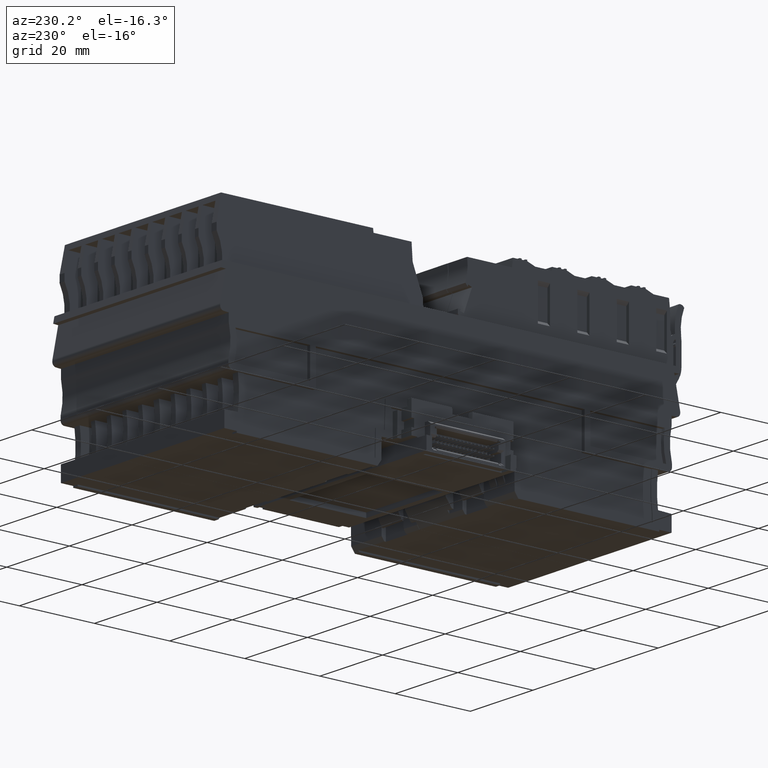
[diagram: clean part render]
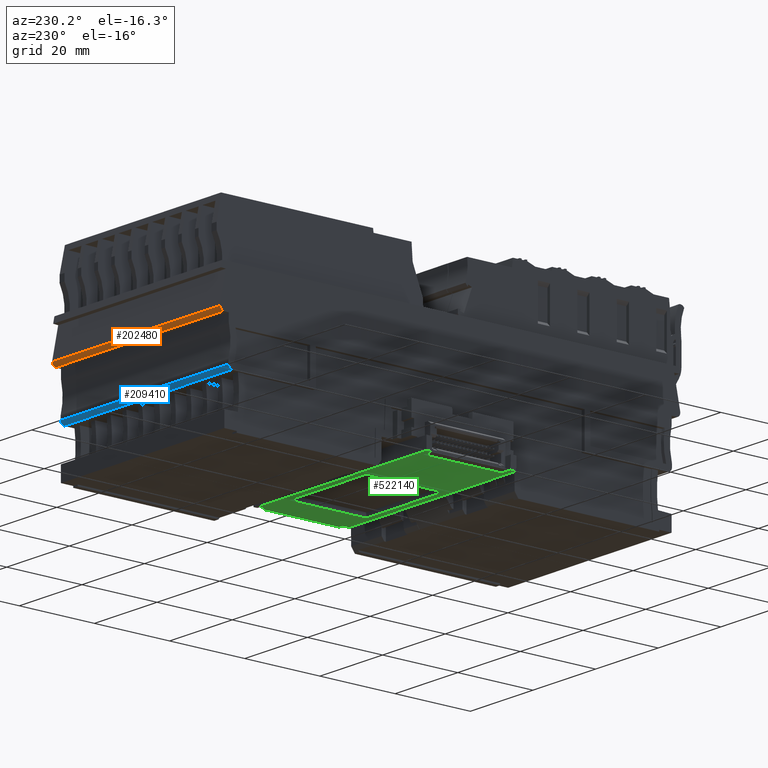
[diagram: same view with three faces highlighted in distinct colors, each labeled with its STEP entity id]
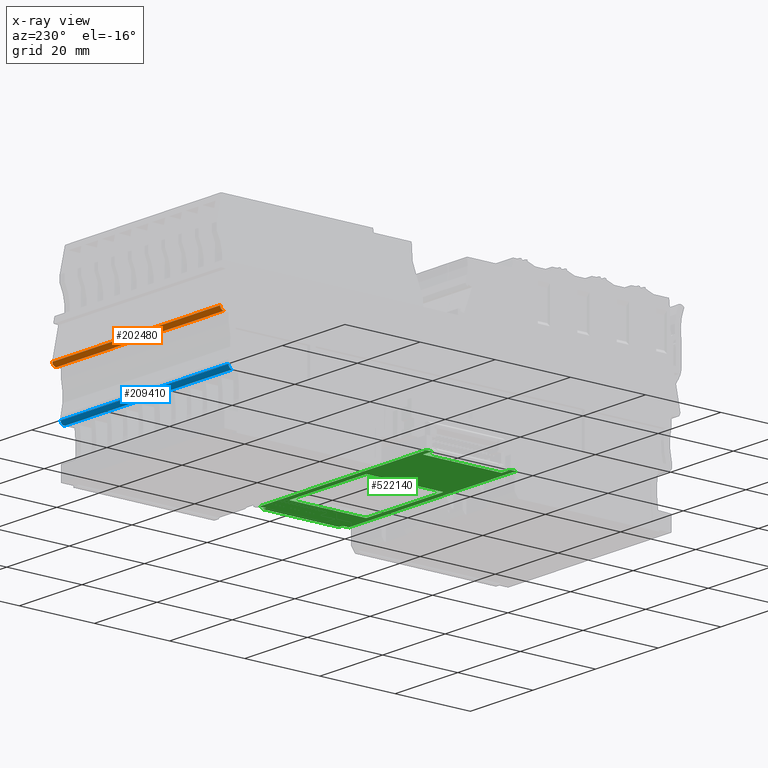
[diagram: x-ray of the same camera — body ghosted, the three highlighted faces saturated]
A machine part, auxiliary view with three faces highlighted in distinct colors.
The next image is the same camera in x-ray (body ghosted, the three faces saturated) — at least one of them is partly hidden behind the body in this view.
Their STEP definitions:

[orange] entity #202480 — the highlighted cylindrical surface (edge-blend (fillet) strip) has radius 1 mm, axis along (-1, 0, 0).
#191060=CARTESIAN_POINT('',(93.2627630572111,40.8492414770508,
5.56760342089841));
#191070=VERTEX_POINT('',#191060);
#191100=CARTESIAN_POINT('',(92.2702169055698,40.7292236028127,
5.58876581030419));
#191110=DIRECTION('',(0.00212691332374861,0.156562576307246,
0.987665751122186));
#191120=DIRECTION('',(-0.999997737947596,0.000351191570620833,
0.00209779984081798));
#191130=AXIS2_PLACEMENT_3D('',#191100,#191110,#191120);
#191140=CIRCLE('',#191130,1.);
#191150=CARTESIAN_POINT('',(92.4438465473828,39.7564995361036,
5.7425859569974));
#191160=VERTEX_POINT('',#191150);
#191170=EDGE_CURVE('',#191160,#191070,#191140,.T.);
#196210=CARTESIAN_POINT('',(93.148760502722,32.4574873869691,
-47.371280839258));
#196220=VERTEX_POINT('',#196210);
#196250=CARTESIAN_POINT('',(93.2548934778889,40.2699599446303,
1.91324014122375));
#196260=DIRECTION('',(0.00212691333002156,0.156562576307465,
0.987665751122138));
#196270=VECTOR('',#196260,1.);
#196280=LINE('',#196250,#196270);
#196290=EDGE_CURVE('',#196220,#191070,#196280,.T.);
#196570=CARTESIAN_POINT('',(92.3298439928936,31.3647454460219,
-47.1962983031589));
#196580=VERTEX_POINT('',#196570);
#196700=CARTESIAN_POINT('',(92.4359769680606,39.1772180036839,
2.08822267732805));
#196710=DIRECTION('',(0.00212691333002156,0.156562576307465,
0.987665751122138));
#196720=VECTOR('',#196710,1.);
#196730=LINE('',#196700,#196720);
#196740=EDGE_CURVE('',#196580,#191160,#196730,.T.);
#199010=CARTESIAN_POINT('',(92.1562143510806,32.337469512731,
-47.3501184498521));
#199020=DIRECTION('',(0.00212691332386244,0.156562576307274,
0.987665751122181));
#199030=DIRECTION('',(-0.999997737947596,0.000351191570638654,
0.00209779984093041));
#199040=AXIS2_PLACEMENT_3D('',#199010,#199020,#199030);
#199050=CIRCLE('',#199040,1.);
#199060=EDGE_CURVE('',#196580,#196220,#199050,.T.);
#202370=CARTESIAN_POINT('',(92.2623473262476,40.1499420703932,
1.9344025306357));
#202380=DIRECTION('',(-0.00212691333002156,-0.156562576307465,
-0.987665751122138));
#202390=DIRECTION('',(-0.999997737947583,0.000351191571602943,
0.00209779984701357));
#202400=AXIS2_PLACEMENT_3D('',#202370,#202380,#202390);
#202410=CYLINDRICAL_SURFACE('',#202400,1.);
#202420=ORIENTED_EDGE('',*,*,#191170,.F.);
#202430=ORIENTED_EDGE('',*,*,#196290,.T.);
#202440=ORIENTED_EDGE('',*,*,#199060,.T.);
#202450=ORIENTED_EDGE('',*,*,#196740,.F.);
#202460=EDGE_LOOP('',(#202450,#202440,#202430,#202420));
#202470=FACE_OUTER_BOUND('',#202460,.T.);
#202480=ADVANCED_FACE('',(#202470),#202410,.T.);

[blue] entity #209410 — the highlighted cylindrical surface (edge-blend (fillet) strip) has radius 1 mm, axis along (1, -0, -0).
#191560=CARTESIAN_POINT('',(92.5473341594871,28.7730386882404,
7.48343686326467));
#191570=VERTEX_POINT('',#191560);
#191600=CARTESIAN_POINT('',(91.5547880078458,28.6530208140019,
7.50459925267052));
#191610=DIRECTION('',(0.00212691332374861,0.156562576307246,
0.987665751122186));
#191620=DIRECTION('',(-0.999997737947596,0.000351191570620833,
0.00209779984081798));
#191630=AXIS2_PLACEMENT_3D('',#191600,#191610,#191620);
#191640=CIRCLE('',#191630,1.);
#191650=CARTESIAN_POINT('',(91.6766387899598,27.6726719630536,
7.6597395676877));
#191660=VERTEX_POINT('',#191650);
#191670=EDGE_CURVE('',#191660,#191570,#191640,.T.);
#198630=CARTESIAN_POINT('',(91.5626362354728,19.2809178728142,
-45.2791446932604));
#198640=VERTEX_POINT('',#198630);
#198670=CARTESIAN_POINT('',(91.4407854533605,20.2612667238892,
-45.4342850074805));
#198680=DIRECTION('',(0.00212691332386244,0.156562576307274,
0.987665751122181));
#198690=DIRECTION('',(-0.999997737947596,0.000351191570638654,
0.00209779984093041));
#198700=AXIS2_PLACEMENT_3D('',#198670,#198680,#198690);
#198710=CIRCLE('',#198700,1.);
#198720=CARTESIAN_POINT('',(92.4333316050001,20.3812845980049,
-45.4554473976616));
#198730=VERTEX_POINT('',#198720);
#198740=EDGE_CURVE('',#198640,#198730,#198710,.T.);
#208900=CARTESIAN_POINT('',(91.8160473241694,37.9345660270304,
72.3962912241338));
#208910=DIRECTION('',(0.0021269133299487,0.156562576308051,
0.987665751122045));
#208920=VECTOR('',#208910,1.);
#208930=LINE('',#208900,#208920);
#208940=EDGE_CURVE('',#198640,#191660,#208930,.T.);
#209120=CARTESIAN_POINT('',(92.6867426936969,39.0349327522202,
72.2199885197327));
#209130=DIRECTION('',(0.00212691332994959,0.156562576308044,
0.987665751122046));
#209140=VECTOR('',#209130,1.);
#209150=LINE('',#209120,#209140);
#209160=EDGE_CURVE('',#198730,#191570,#209150,.T.);
#209300=CARTESIAN_POINT('',(91.6941965420556,38.9149148779826,
72.2411509091447));
#209310=DIRECTION('',(0.00212691332994959,0.156562576308044,
0.987665751122046));
#209320=DIRECTION('',(-0.992546151641317,-0.120017874237093,
0.0211623894119495));
#209330=AXIS2_PLACEMENT_3D('',#209300,#209310,#209320);
#209340=CYLINDRICAL_SURFACE('',#209330,1.);
#209350=ORIENTED_EDGE('',*,*,#191670,.F.);
#209360=ORIENTED_EDGE('',*,*,#209160,.T.);
#209370=ORIENTED_EDGE('',*,*,#198740,.T.);
#209380=ORIENTED_EDGE('',*,*,#208940,.F.);
#209390=EDGE_LOOP('',(#209380,#209370,#209360,#209350));
#209400=FACE_OUTER_BOUND('',#209390,.T.);
#209410=ADVANCED_FACE('',(#209400),#209340,.T.);

[green] entity #522140 — the highlighted planar face has unit normal (-0, 0, -1).
#438600=CARTESIAN_POINT('',(10.3343893544569,-7.0000000000044,
62.9423982669129));
#438610=VERTEX_POINT('',#438600);
#438640=CARTESIAN_POINT('',(10.3343893439737,-7.0000000000044,0.));
#438650=DIRECTION('',(-1.66551833784809E-10,0.,-1.));
#438660=VECTOR('',#438650,1.);
#438670=LINE('',#438640,#438660);
#438680=CARTESIAN_POINT('',(10.3343893539835,-7.0000000000044,
60.0999999811799));
#438690=VERTEX_POINT('',#438680);
#438700=EDGE_CURVE('',#438610,#438690,#438670,.T.);
#444730=CARTESIAN_POINT('',(0.,-7.0000000000044,62.9423982686303));
#444740=DIRECTION('',(-1.,0.,1.66188238505016E-10));
#444750=VECTOR('',#444740,1.);
#444760=LINE('',#444730,#444750);
#444770=CARTESIAN_POINT('',(11.8346175718442,-7.0000000000044,
62.9423982666636));
#444780=VERTEX_POINT('',#444770);
#444790=EDGE_CURVE('',#444780,#438610,#444760,.T.);
#445180=CARTESIAN_POINT('',(11.8346175623579,-7.0000000000044,
9.59430301509215));
#445190=VERTEX_POINT('',#445180);
#445220=CARTESIAN_POINT('',(11.8346175606519,-7.0000000000044,0.));
#445230=DIRECTION('',(1.77819562721026E-10,0.,1.));
#445240=VECTOR('',#445230,1.);
#445250=LINE('',#445220,#445240);
#445260=EDGE_CURVE('',#445190,#444780,#445250,.T.);
#495030=CARTESIAN_POINT('',(-10.2363997074414,-7.0000000000044,
8.49425751158626));
#495040=VERTEX_POINT('',#495030);
#495070=CARTESIAN_POINT('',(0.,-7.0000000000044,8.49425751158626));
#495080=DIRECTION('',(1.,0.,0.));
#495090=VECTOR('',#495080,1.);
#495100=LINE('',#495070,#495090);
#495110=CARTESIAN_POINT('',(10.0635997549812,-7.0000000000044,
8.49425751158626));
#495120=VERTEX_POINT('',#495110);
#495130=EDGE_CURVE('',#495040,#495120,#495100,.T.);
#520130=CARTESIAN_POINT('',(-12.0074175061664,-7.0000000000044,
62.9423982706258));
#520140=VERTEX_POINT('',#520130);
#520170=CARTESIAN_POINT('',(-12.0074175173621,-7.0000000000044,0.));
#520180=DIRECTION('',(1.77871441822051E-10,0.,1.));
#520190=VECTOR('',#520180,1.);
#520200=LINE('',#520170,#520190);
#520210=CARTESIAN_POINT('',(-12.0074175156555,-7.0000000000044,
9.59430301493719));
#520220=VERTEX_POINT('',#520210);
#520230=EDGE_CURVE('',#520220,#520140,#520200,.T.);
#520610=CARTESIAN_POINT('',(-10.5071892845367,-7.0000000000044,0.));
#520620=DIRECTION('',(-1.66609103431138E-10,0.,-1.));
#520630=VECTOR('',#520620,1.);
#520640=LINE('',#520610,#520630);
#520650=CARTESIAN_POINT('',(-10.5071892740499,-7.0000000000044,
62.9423982703765));
#520660=VERTEX_POINT('',#520650);
#520670=CARTESIAN_POINT('',(-10.5071892745235,-7.0000000000044,
60.0999999846517));
#520680=VERTEX_POINT('',#520670);
#520690=EDGE_CURVE('',#520660,#520680,#520640,.T.);
#521160=CARTESIAN_POINT('',(0.,-7.0000000000044,62.9423982686303));
#521170=DIRECTION('',(-1.,0.,1.66188238505016E-10));
#521180=VECTOR('',#521170,1.);
#521190=LINE('',#521160,#521180);
#521200=EDGE_CURVE('',#520660,#520140,#521190,.T.);
#521320=CARTESIAN_POINT('',(12.5807317289672,-7.0000000000044,
63.8381161360836));
#521330=DIRECTION('',(-0.,-1.,-0.));
#521340=DIRECTION('',(-1.,0.,0.));
#521350=AXIS2_PLACEMENT_3D('',#521320,#521330,#521340);
#521360=PLANE('',#521350);
#521370=CARTESIAN_POINT('',(0.,-7.0000000000044,60.0999999829014));
#521380=DIRECTION('',(-1.,0.,1.66580426592701E-10));
#521390=VECTOR('',#521380,1.);
#521400=LINE('',#521370,#521390);
#521410=EDGE_CURVE('',#438690,#520680,#521400,.T.);
#521420=ORIENTED_EDGE('',*,*,#521410,.T.);
#521430=ORIENTED_EDGE('',*,*,#438700,.T.);
#521440=ORIENTED_EDGE('',*,*,#444790,.T.);
#521450=ORIENTED_EDGE('',*,*,#445260,.T.);
#521460=CARTESIAN_POINT('',(0.,-7.0000000000044,9.59430301509215));
#521470=DIRECTION('',(1.,0.,0.));
#521480=VECTOR('',#521470,1.);
#521490=LINE('',#521460,#521480);
#521500=CARTESIAN_POINT('',(10.0635997551644,-7.0000000000044,
9.59430301509215));
#521510=VERTEX_POINT('',#521500);
#521520=EDGE_CURVE('',#521510,#445190,#521490,.T.);
#521530=ORIENTED_EDGE('',*,*,#521520,.T.);
#521540=CARTESIAN_POINT('',(10.0635997535665,-7.0000000000044,0.));
#521550=DIRECTION('',(-1.66551833784807E-10,0.,-1.));
#521560=VECTOR('',#521550,1.);
#521570=LINE('',#521540,#521560);
#521580=EDGE_CURVE('',#521510,#495120,#521570,.T.);
#521590=ORIENTED_EDGE('',*,*,#521580,.F.);
#521600=ORIENTED_EDGE('',*,*,#495130,.T.);
#521610=CARTESIAN_POINT('',(-10.2363997088566,-7.0000000000044,0.));
#521620=DIRECTION('',(1.6660901940052E-10,0.,1.));
#521630=VECTOR('',#521620,1.);
#521640=LINE('',#521610,#521630);
#521650=CARTESIAN_POINT('',(-10.2363997072581,-7.0000000000044,
9.59430301493719));
#521660=VERTEX_POINT('',#521650);
#521670=EDGE_CURVE('',#495040,#521660,#521640,.T.);
#521680=ORIENTED_EDGE('',*,*,#521670,.F.);
#521690=CARTESIAN_POINT('',(0.,-7.0000000000044,9.59430301493719));
#521700=DIRECTION('',(-1.,0.,0.));
#521710=VECTOR('',#521700,1.);
#521720=LINE('',#521690,#521710);
#521730=EDGE_CURVE('',#521660,#520220,#521720,.T.);
#521740=ORIENTED_EDGE('',*,*,#521730,.F.);
#521750=ORIENTED_EDGE('',*,*,#520230,.F.);
#521760=ORIENTED_EDGE('',*,*,#521200,.T.);
#521770=ORIENTED_EDGE('',*,*,#520690,.F.);
#521780=EDGE_LOOP('',(#521770,#521760,#521750,#521740,#521680,#521600,
#521590,#521530,#521450,#521440,#521430,#521420));
#521790=FACE_OUTER_BOUND('',#521780,.T.);
#521800=CARTESIAN_POINT('',(0.,-7.0000000000044,17.0999999910705));
#521810=DIRECTION('',(1.,0.,1.49437883957764E-11));
#521820=VECTOR('',#521810,1.);
#521830=LINE('',#521800,#521820);
#521840=CARTESIAN_POINT('',(-10.316326634997,-7.0000000000044,
17.0999999909164));
#521850=VERTEX_POINT('',#521840);
#521860=CARTESIAN_POINT('',(10.1435267156698,-7.0000000000044,
17.0999999912221));
#521870=VERTEX_POINT('',#521860);
#521880=EDGE_CURVE('',#521850,#521870,#521830,.T.);
#521890=ORIENTED_EDGE('',*,*,#521880,.F.);
#521900=CARTESIAN_POINT('',(10.1435267159253,-7.0000000000044,0.));
#521910=DIRECTION('',(-1.49437456865184E-11,0.,1.));
#521920=VECTOR('',#521910,1.);
#521930=LINE('',#521900,#521920);
#521940=CARTESIAN_POINT('',(10.1435267153022,-7.0000000000044,
41.6999999912224));
#521950=VERTEX_POINT('',#521940);
#521960=EDGE_CURVE('',#521870,#521950,#521930,.T.);
#521970=ORIENTED_EDGE('',*,*,#521960,.F.);
#521980=CARTESIAN_POINT('',(0.,-7.0000000000044,41.6999999910708));
#521990=DIRECTION('',(-1.,0.,-1.49437883957764E-11));
#522000=VECTOR('',#521990,1.);
#522010=LINE('',#521980,#522000);
#522020=CARTESIAN_POINT('',(-10.3163266353646,-7.0000000000044,
41.6999999909167));
#522030=VERTEX_POINT('',#522020);
#522040=EDGE_CURVE('',#521950,#522030,#522010,.T.);
#522050=ORIENTED_EDGE('',*,*,#522040,.F.);
#522060=CARTESIAN_POINT('',(-10.3163266347415,-7.0000000000044,0.));
#522070=DIRECTION('',(1.4943741300764E-11,0.,-1.));
#522080=VECTOR('',#522070,1.);
#522090=LINE('',#522060,#522080);
#522100=EDGE_CURVE('',#522030,#521850,#522090,.T.);
#522110=ORIENTED_EDGE('',*,*,#522100,.F.);
#522120=EDGE_LOOP('',(#522110,#522050,#521970,#521890));
#522130=FACE_BOUND('',#522120,.T.);
#522140=ADVANCED_FACE('',(#521790,#522130),#521360,.T.);